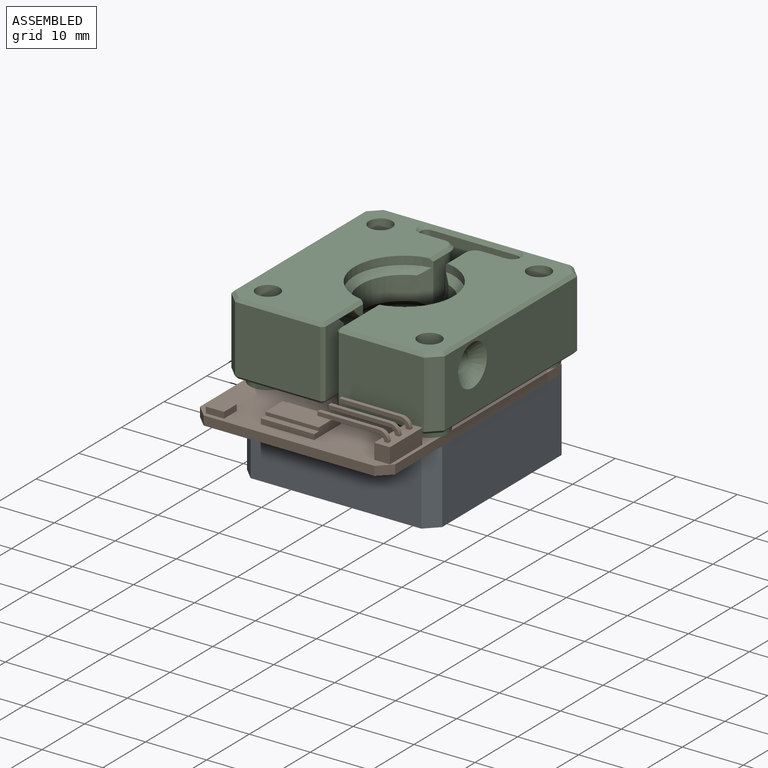
[diagram: assembled view]
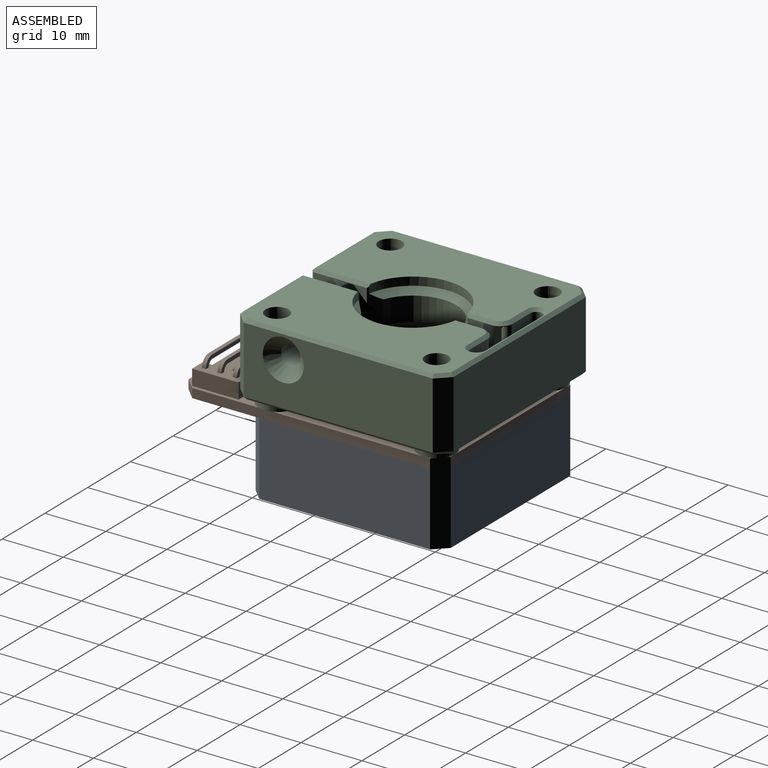
[diagram: assembled view, second angle]
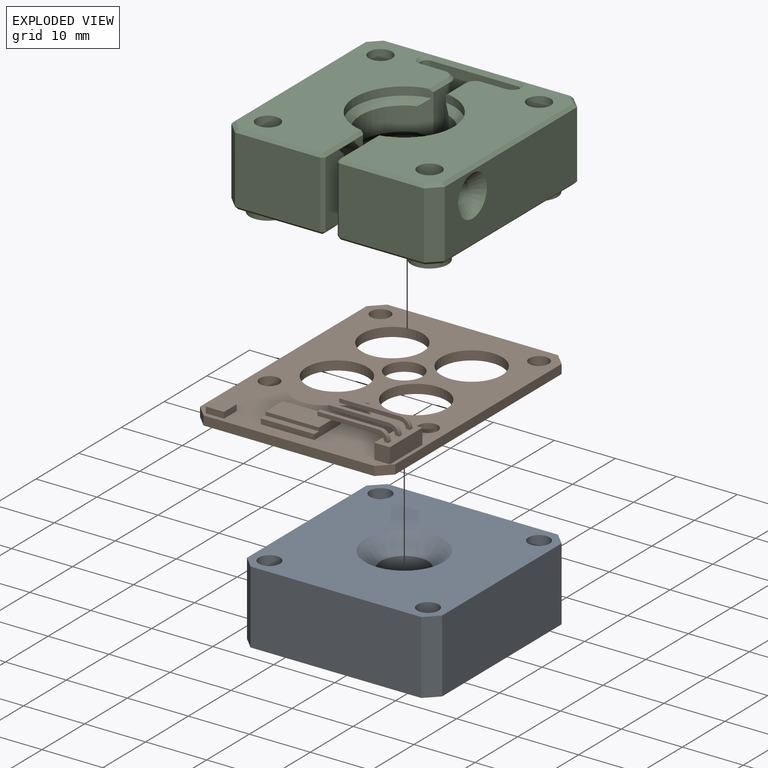
[diagram: exploded view]
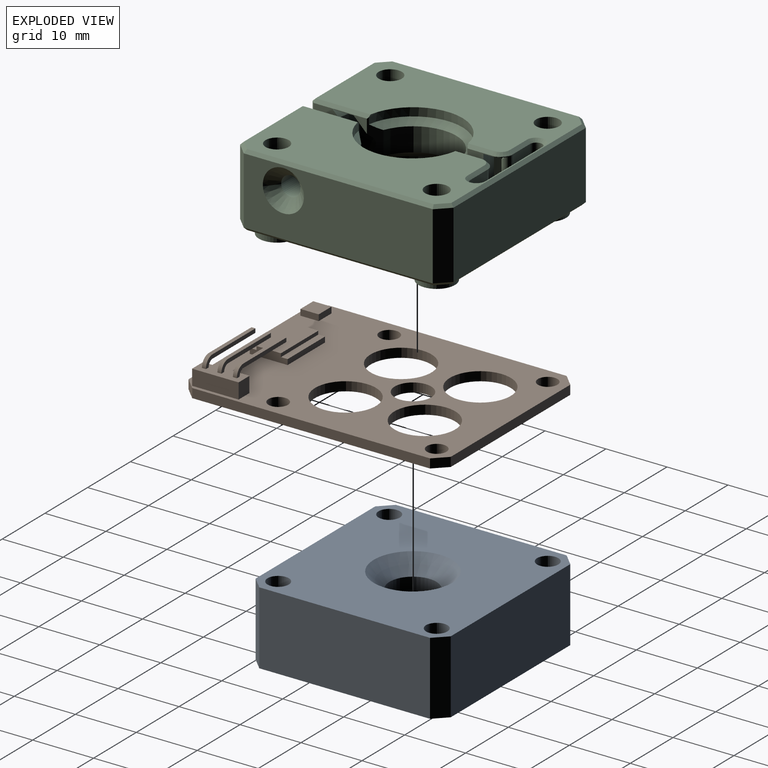
[diagram: exploded view, second angle]
ASSEMBLY  parts=3 mates=2
PART A: 16 faces, bbox 32x32x12 mm
  f0: plane 32x32mm, normal (0,0,1), area 930.9mm2, adj f2,f3,f4,f5,f6,f7,f8,f9
  f1: plane 32x32mm, normal (0,0,-1), area 847.7mm2, adj f2,f3,f4,f5,f6,f7,f8,f9
  f2: plane 28x12mm, normal (1,0,0), area 336mm2, adj f0,f1,f12,f14
  f3: plane 28x12mm, normal (0,1,0), area 336mm2, adj f0,f1,f12,f13
  f4: plane 28x12mm, normal (0,-1,0), area 336mm2, adj f0,f1,f14,f15
  f5: plane 28x12mm, normal (-1,0,0), area 336mm2, adj f0,f1,f13,f15
  f6: cylinder r=1.75mm len=12mm, axis (0,0,1), area 131.9mm2, adj f0,f1
  f7: cylinder r=1.75mm len=12mm, axis (0,0,1), area 131.9mm2, adj f0,f1
  f8: cylinder r=1.75mm len=12mm, axis (0,0,1), area 131.9mm2, adj f0,f1
  f9: cylinder r=1.75mm len=12mm, axis (0,0,1), area 131.9mm2, adj f0,f1
  f10: cylinder r=3.85mm len=9.42mm, axis (0,0,1), area 227.9mm2, adj f0,f11
  f11: cone r=3.46mm half-angle=45deg, axis (0,0,-1), area 117.8mm2, adj f1,f10
  f12: plane 12x2mm, normal (0.71,0.71,0), area 33.9mm2, adj f0,f1,f2,f3
  f13: plane 12x2mm, normal (-0.71,0.71,0), area 33.9mm2, adj f0,f1,f3,f5
  f14: plane 12x2mm, normal (0.71,-0.71,0), area 33.9mm2, adj f0,f1,f2,f4
  f15: plane 12x2mm, normal (-0.71,-0.71,0), area 33.9mm2, adj f0,f1,f4,f5
PART B: 59 faces, bbox 32x43x5.6 mm
  f0: plane 10x0.65mm, normal (0,0,1), area 6.5mm2, adj f2,f9,f10,f12
  f1: plane 10x0.65mm, normal (0,0,-1), area 6.5mm2, adj f2,f10,f11,f12
  f2: plane 0.65x0.65mm, normal (-1,0,0), area 0.4mm2, adj f0,f1,f10,f12
  f3: plane 10x0.65mm, normal (0,0,1), area 6.5mm2, adj f5,f13,f14,f16
  f4: plane 10x0.65mm, normal (0,0,-1), area 6.5mm2, adj f5,f14,f15,f16
  f5: plane 0.65x0.65mm, normal (-1,0,0), area 0.4mm2, adj f3,f4,f14,f16
  f6: plane 10x0.65mm, normal (0,0,1), area 6.5mm2, adj f8,f17,f18,f20
  f7: plane 10x0.65mm, normal (0,0,-1), area 6.5mm2, adj f8,f18,f19,f20
  f8: plane 0.65x0.65mm, normal (-1,0,0), area 0.4mm2, adj f6,f7,f18,f20
  f9: cylinder r=1.6mm len=1.61mm, axis (0,-1,0), area 1.6mm2, adj f0,f10,f12,f25
  f10: plane 11.61x1.61mm, normal (0,-1,0), area 7.8mm2, adj f0,f1,f2,f9,f11,f25
  f11: cylinder r=0.95mm len=0.96mm, axis (0,-1,0), area 1mm2, adj f1,f10,f12,f25
  f12: plane 11.61x1.61mm, normal (0,1,0), area 7.8mm2, adj f0,f1,f2,f9,f11,f25
  f13: cylinder r=1.6mm len=1.61mm, axis (0,-1,0), area 1.6mm2, adj f3,f14,f16,f25
  f14: plane 11.61x1.61mm, normal (0,-1,0), area 7.8mm2, adj f3,f4,f5,f13,f15,f25
  f15: cylinder r=0.95mm len=0.96mm, axis (0,-1,0), area 1mm2, adj f4,f14,f16,f25
  f16: plane 11.61x1.61mm, normal (0,1,0), area 7.8mm2, adj f3,f4,f5,f13,f15,f25
  f17: cylinder r=1.6mm len=1.61mm, axis (0,-1,0), area 1.6mm2, adj f6,f18,f20,f25
  f18: plane 11.61x1.61mm, normal (0,-1,0), area 7.8mm2, adj f6,f7,f8,f17,f19,f25
  f19: cylinder r=0.95mm len=0.96mm, axis (0,-1,0), area 1mm2, adj f7,f18,f20,f25
  f20: plane 11.61x1.61mm, normal (0,1,0), area 7.8mm2, adj f6,f7,f8,f17,f19,f25
  f21: plane 7.62x2.54mm, normal (1,0,0), area 19.4mm2, adj f22,f24,f25,f58
  f22: plane 2.54x2.54mm, normal (0,-1,0), area 6.5mm2, adj f21,f23,f25,f58
  f23: plane 7.62x2.54mm, normal (-1,0,0), area 19.4mm2, adj f22,f24,f25,f58
  f24: plane 2.54x2.54mm, normal (0,1,0), area 6.5mm2, adj f21,f23,f25,f58
  f25: plane 7.62x2.54mm, normal (0,0,1), area 18.1mm2, adj f9,f10,f11,f12,f13,f14,f15,f16
  f26: cylinder r=5mm len=10mm, axis (0,0,1), area 47.1mm2, adj f46,f58
  f27: cylinder r=5mm len=10mm, axis (0,0,1), area 47.1mm2, adj f46,f58
  f28: cylinder r=5mm len=10mm, axis (0,0,1), area 47.1mm2, adj f46,f58
  f29: cylinder r=5mm len=10mm, axis (0,0,1), area 47.1mm2, adj f46,f58
  f30: plane 3x1mm, normal (-1,0,0), area 3mm2, adj f31,f33,f34,f58
  f31: plane 3x1mm, normal (0,1,0), area 3mm2, adj f30,f32,f34,f58
  f32: plane 3x1mm, normal (1,0,0), area 3mm2, adj f31,f33,f34,f58
  f33: plane 3x1mm, normal (0,-1,0), area 3mm2, adj f30,f32,f34,f58
  f34: plane 3x3mm, normal (0,0,1), area 9mm2, adj f30,f31,f32,f33
  f35: plane 8.75x0.88mm, normal (0,-1,0), area 7.7mm2, adj f36,f40,f42,f58
  f36: plane 8.75x1.1mm, normal (0,0,1), area 9.6mm2, adj f35,f39,f40,f42
  f37: plane 8.75x0.88mm, normal (0,1,0), area 7.7mm2, adj f38,f40,f42,f58
  f38: plane 8.75x1.1mm, normal (0,0,1), area 9.6mm2, adj f37,f40,f41,f42
  f39: plane 8.75x0.58mm, normal (0,-1,0), area 5mm2, adj f36,f40,f42,f43
  f40: plane 6.2x1.45mm, normal (-1,0,0), area 7.7mm2, adj f35,f36,f37,f38,f39,f41,f43,f58
  f41: plane 8.75x0.58mm, normal (0,1,0), area 5mm2, adj f38,f40,f42,f43
  f42: plane 6.2x1.45mm, normal (1,0,0), area 7.7mm2, adj f35,f36,f37,f38,f39,f41,f43,f58
  f43: plane 8.75x4mm, normal (0,0,1), area 35mm2, adj f39,f40,f41,f42
  f44: cylinder r=3mm len=6mm, axis (0,0,1), area 28.3mm2, adj f46,f58
  f45: plane 2x2mm, normal (0.71,-0.71,0), area 4.2mm2, adj f46,f47,f56,f58
  f46: plane 43x32mm, normal (0,0,-1), area 993.4mm2, adj f26,f27,f28,f29,f44,f45,f47,f48
  f47: plane 28x1.5mm, normal (0,-1,0), area 42mm2, adj f45,f46,f48,f58
  f48: plane 2x2mm, normal (-0.71,-0.71,0), area 4.2mm2, adj f46,f47,f57,f58
  f49: plane 2x2mm, normal (0.71,0.71,0), area 4.2mm2, adj f46,f50,f56,f58
  f50: plane 28x1.5mm, normal (0,1,0), area 42mm2, adj f46,f49,f51,f58
  f51: plane 2x2mm, normal (-0.71,0.71,0), area 4.2mm2, adj f46,f50,f57,f58
  f52: cylinder r=1.6mm len=3.2mm, axis (0,0,1), area 15.1mm2, adj f46,f58
  f53: cylinder r=1.6mm len=3.2mm, axis (0,0,1), area 15.1mm2, adj f46,f58
  f54: cylinder r=1.6mm len=3.2mm, axis (0,0,1), area 15.1mm2, adj f46,f58
  f55: cylinder r=1.6mm len=3.2mm, axis (0,0,1), area 15.1mm2, adj f46,f58
  f56: plane 39x1.5mm, normal (1,0,0), area 58.5mm2, adj f45,f46,f49,f58
  f57: plane 39x1.5mm, normal (-1,0,0), area 58.5mm2, adj f46,f48,f51,f58
  f58: plane 43x32mm, normal (0,0,1), area 910.8mm2, adj f21,f22,f23,f24,f26,f27,f28,f29
PART C: 145 faces, bbox 35.2x35.2x13.9 mm
  f0: plane 16.51x7.15mm, normal (0,0,1), area 79.9mm2, adj f14,f69,f70,f72,f127,f129
  f1: plane 16.51x7.15mm, normal (0,0,1), area 79.9mm2, adj f16,f53,f67,f68,f128,f139
  f2: cylinder r=8.15mm len=16.12mm, axis (0,0,1), area 31.5mm2, adj f3,f4,f16,f68,f75,f126
  f3: plane 8.99x0.5mm, normal (-0.71,0,0.71), area 6.3mm2, adj f2,f16,f67,f107,f126
  f4: plane 4.29x0.5mm, normal (-0.71,0,0.71), area 3mm2, adj f2,f53,f68,f82,f126
  f5: cylinder r=8.15mm len=16.12mm, axis (0,0,1), area 31.5mm2, adj f6,f69,f70,f71,f126,f134
  f6: plane 4.29x0.5mm, normal (0.71,0,0.71), area 3mm2, adj f5,f69,f72,f76,f126
  f7: cylinder r=1.6mm len=7.98mm, axis (1,0,0), area 67.9mm2, adj f49,f66
  f8: plane 6.54x2.99mm, normal (0,-0.71,0.71), area 17.9mm2, adj f9,f10,f14,f70
  f9: cylinder r=1.6mm len=6.62mm, axis (1,0,0), area 15.4mm2, adj f8,f10,f13,f70
  f10: cylinder r=10.9mm len=21.71mm, axis (0,0,1), area 291mm2, adj f8,f9,f13,f14,f34,f37,f72
  f11: plane 6.54x2.99mm, normal (0,-0.71,0.71), area 17.9mm2, adj f15,f16,f54,f67
  f12: plane 6.54x2.57mm, normal (0,-0.71,-0.71), area 17.1mm2, adj f15,f16,f42,f54,f67
  f13: plane 6.54x2.57mm, normal (0,-0.71,-0.71), area 17.1mm2, adj f9,f10,f14,f37,f70
  f14: plane 14.18x13.2mm, normal (1,0,0), area 72.5mm2, adj f0,f8,f10,f13,f34,f35,f36,f37
  f15: cylinder r=10.9mm len=21.71mm, axis (0,0,1), area 291mm2, adj f11,f12,f42,f48,f53,f54,f67
  f16: plane 11.4x1.8mm, normal (-0.71,0.71,0), area 10.1mm2, adj f1,f2,f3,f11,f12,f54,f67,f73
  f17: cone r=14.1mm half-angle=45deg, axis (0,0,-1), area 22.8mm2, adj f18,f19,f23,f44,f51
  f18: plane 4.01x0.51mm, normal (0,0.71,-0.71), area 2.8mm2, adj f17,f19,f23,f83,f89
  f19: cone r=1.75mm half-angle=45deg, axis (0,0,1), area 0.7mm2, adj f17,f18,f40,f44,f88
  f20: cone r=14.1mm half-angle=45deg, axis (0,0,-1), area 22.8mm2, adj f21,f22,f23,f45,f115
  f21: cone r=1.75mm half-angle=45deg, axis (0,0,1), area 0.7mm2, adj f20,f22,f39,f45,f92
  f22: plane 4.01x0.51mm, normal (0,0.71,-0.71), area 2.8mm2, adj f20,f21,f23,f87,f91
  f23: plane 34x34mm, normal (0,0,-1), area 339.9mm2, adj f17,f18,f20,f22,f51,f55,f57,f59
  f24: cone r=0.95mm half-angle=59deg, axis (0,0,1), area 5.5mm2, adj f25,f142
  f25: cylinder r=1.9mm len=6mm, axis (0,0,1), area 71.6mm2, adj f24,f126
  f26: cone r=0.95mm half-angle=59deg, axis (0,0,1), area 5.5mm2, adj f27,f140
  f27: cylinder r=1.9mm len=6mm, axis (0,0,1), area 71.6mm2, adj f26,f126
  f28: cone r=0.95mm half-angle=59deg, axis (0,0,1), area 5.5mm2, adj f29,f141
  f29: cylinder r=1.9mm len=6mm, axis (0,0,1), area 71.6mm2, adj f28,f126
  f30: cone r=0.95mm half-angle=59deg, axis (0,0,1), area 5.5mm2, adj f31,f143
  f31: cylinder r=1.9mm len=6mm, axis (0,0,1), area 71.6mm2, adj f30,f126
  f32: cylinder r=0.87mm len=10.4mm, axis (0,0,1), area 24.8mm2, adj f34,f35,f36,f37,f47,f87
  f33: cylinder r=0.87mm len=10.4mm, axis (0,0,1), area 24.8mm2, adj f42,f43,f46,f48,f49,f83
  f34: plane 28.16x12.9mm, normal (0,0,1), area 110.7mm2, adj f10,f14,f32,f35,f39,f72
  f35: cone r=13.4mm half-angle=45deg, axis (0,0,-1), area 54.9mm2, adj f14,f32,f34,f36
  f36: cylinder r=12.9mm len=25.45mm, axis (0,0,1), area 298mm2, adj f14,f32,f35,f47,f65
  f37: plane 28.16x12.9mm, normal (0,0,-1), area 111.2mm2, adj f10,f13,f14,f32,f38,f47,f72
  f38: cylinder r=2mm len=2mm, axis (0,0,-1), area 0.3mm2, adj f37,f72,f76,f87
  f39: cylinder r=2mm len=2mm, axis (0,0,-1), area 1.6mm2, adj f21,f34,f72,f87
  f40: cylinder r=2mm len=2mm, axis (0,0,1), area 1.6mm2, adj f19,f48,f53,f83
  f41: cylinder r=2mm len=2mm, axis (0,0,1), area 0.3mm2, adj f42,f53,f82,f83
  f42: plane 28.16x12.9mm, normal (0,0,-1), area 111.2mm2, adj f12,f15,f33,f41,f43,f53,f67
  f43: cone r=13.4mm half-angle=45deg, axis (0,0,1), area 54.9mm2, adj f33,f42,f49,f67
  f44: plane 27.64x12.8mm, normal (0,0,-1), area 96.8mm2, adj f17,f19,f51,f52,f88
  f45: plane 27.64x12.8mm, normal (0,0,-1), area 96.8mm2, adj f20,f21,f50,f92,f115
  f46: cone r=13.4mm half-angle=45deg, axis (0,0,-1), area 54.9mm2, adj f33,f48,f49,f67
  f47: cone r=13.4mm half-angle=45deg, axis (0,0,1), area 54.9mm2, adj f14,f32,f36,f37
  f48: plane 28.16x12.9mm, normal (0,0,1), area 110.7mm2, adj f15,f33,f40,f46,f53,f67
  f49: cylinder r=12.9mm len=25.45mm, axis (0,0,1), area 298mm2, adj f7,f33,f43,f46,f67
  f50: cone r=10.4mm half-angle=45deg, axis (0,0,1), area 62mm2, adj f14,f45,f72,f92,f115,f135
  f51: plane 5.76x0.5mm, normal (-0.71,0,-0.71), area 2.5mm2, adj f17,f23,f44,f52,f67,f104
  f52: cone r=10.4mm half-angle=45deg, axis (0,0,1), area 62mm2, adj f44,f51,f53,f67,f88,f136
  f53: plane 13.2x9.48mm, normal (-1,0,0), area 42.2mm2, adj f1,f4,f15,f40,f41,f42,f48,f52
  f54: cylinder r=1.6mm len=6.62mm, axis (1,0,0), area 15.4mm2, adj f11,f12,f15,f16
  f55: cylinder r=3mm len=6mm, axis (0,0,-1), area 24.5mm2, adj f23,f56
  f56: plane 6x6mm, normal (0,0,-1), area 21.7mm2, adj f55,f141
  f57: cylinder r=3mm len=6mm, axis (0,0,-1), area 24.5mm2, adj f23,f58
  f58: plane 6x6mm, normal (0,0,-1), area 21.7mm2, adj f57,f143
  f59: cylinder r=3mm len=6mm, axis (0,0,-1), area 24.5mm2, adj f23,f60
  f60: plane 6x6mm, normal (0,0,-1), area 21.7mm2, adj f59,f140
  f61: cylinder r=3mm len=6mm, axis (0,0,-1), area 24.5mm2, adj f23,f62
  f62: plane 6x6mm, normal (0,0,-1), area 21.7mm2, adj f61,f142
  f63: cylinder r=1.9mm len=4mm, axis (1,0,0), area 47.8mm2, adj f64,f123
  f64: plane 3.8x3.8mm, normal (-1,0,0), area 3.3mm2, adj f63,f65
  f65: cylinder r=1.6mm len=5.75mm, axis (1,0,0), area 45.5mm2, adj f36,f64
  f66: cone r=2.49mm half-angle=45deg, axis (1,0,0), area 39.2mm2, adj f7,f119
  f67: plane 14.18x13.2mm, normal (-1,0,0), area 72.5mm2, adj f1,f3,f11,f12,f15,f16,f42,f43
  f68: plane 11.4x1.8mm, normal (-0.71,-0.71,0), area 12.6mm2, adj f1,f2,f4,f53,f73,f74,f75,f128
  f69: plane 11.4x1.8mm, normal (0.71,-0.71,0), area 12.6mm2, adj f0,f5,f6,f72,f127,f130,f132,f134
  f70: plane 11.4x1.8mm, normal (0.71,0.71,0), area 10.1mm2, adj f0,f5,f8,f9,f13,f14,f71,f127
  f71: plane 8.99x0.5mm, normal (0.71,0,0.71), area 6.3mm2, adj f5,f14,f70,f96,f126
  f72: plane 13.2x9.48mm, normal (1,0,0), area 42.2mm2, adj f0,f6,f10,f34,f37,f38,f39,f50
  f73: cone r=7.61mm half-angle=45deg, axis (0,0,-1), area 28.4mm2, adj f16,f68,f74,f128
  f74: cylinder r=7.15mm len=13.33mm, axis (0,0,1), area 66.5mm2, adj f16,f68,f73,f75
  f75: cone r=7.61mm half-angle=45deg, axis (0,0,1), area 28.4mm2, adj f2,f16,f68,f74
  f76: cone r=1.75mm half-angle=45deg, axis (0,0,-1), area 1.9mm2, adj f6,f38,f77,f126
  f77: plane 4x0.5mm, normal (0,0.71,0.71), area 2.8mm2, adj f76,f78,f87,f126
  f78: cone r=1.25mm half-angle=45deg, axis (0,0,1), area 2.8mm2, adj f77,f79,f86,f126
  f79: plane 14x0.5mm, normal (0,-0.71,0.71), area 9.9mm2, adj f78,f80,f85,f126
  f80: cone r=1.25mm half-angle=45deg, axis (0,0,1), area 2.8mm2, adj f79,f81,f84,f126
  f81: plane 4x0.5mm, normal (0,0.71,0.71), area 2.8mm2, adj f80,f82,f83,f126
  f82: cone r=1.75mm half-angle=45deg, axis (0,0,-1), area 1.9mm2, adj f4,f41,f81,f126
  f83: plane 11x4mm, normal (0,1,0), area 44mm2, adj f18,f33,f40,f41,f81,f84
  f84: cylinder r=1mm len=11mm, axis (0,0,-1), area 34.6mm2, adj f80,f83,f85,f89
  f85: plane 14x11mm, normal (0,-1,0), area 154mm2, adj f79,f84,f86,f90
  f86: cylinder r=1mm len=11mm, axis (0,0,-1), area 34.6mm2, adj f78,f85,f87,f91
  f87: plane 11x4mm, normal (0,1,0), area 44mm2, adj f22,f32,f38,f39,f77,f86
  f88: plane 1.05x0.1mm, normal (-0.71,0,-0.71), area 0.1mm2, adj f19,f44,f52,f53
  f89: cone r=1.25mm half-angle=45deg, axis (0,0,-1), area 2.8mm2, adj f18,f23,f84,f90
  f90: plane 14x0.5mm, normal (0,-0.71,-0.71), area 9.9mm2, adj f23,f85,f89,f91
  f91: cone r=1.25mm half-angle=45deg, axis (0,0,-1), area 2.8mm2, adj f22,f23,f86,f90
  f92: plane 1.05x0.1mm, normal (0.71,0,-0.71), area 0.1mm2, adj f21,f45,f50,f72
  f93: plane 31x0.5mm, normal (-0.71,0,-0.71), area 21.8mm2, adj f23,f116,f117,f123
  f94: plane 0.5x0.5mm, normal (0.58,-0.58,-0.58), area 0.2mm2, adj f97,f114,f115
  f95: plane 31x0.5mm, normal (0,0.71,-0.71), area 21.8mm2, adj f23,f98,f116,f121
  f96: plane 0.5x0.5mm, normal (0.58,-0.58,0.58), area 0.2mm2, adj f71,f97,f99
  f97: plane 11x0.5mm, normal (0.71,-0.71,0), area 7.8mm2, adj f14,f94,f96,f125
  f98: plane 2.21x2.21mm, normal (0.5,0.5,-0.71), area 1.9mm2, adj f23,f95,f100,f120
  f99: plane 14x0.5mm, normal (0,-0.71,0.71), area 9.8mm2, adj f96,f101,f125,f126
  f100: plane 31x0.5mm, normal (0.71,0,-0.71), area 21.8mm2, adj f23,f98,f102,f119
  f101: plane 2.21x2.21mm, normal (-0.5,-0.5,0.71), area 1.9mm2, adj f99,f103,f124,f126
  f102: plane 2.21x2.21mm, normal (0.5,-0.5,-0.71), area 1.9mm2, adj f23,f100,f105,f118
  f103: plane 31x0.5mm, normal (-0.71,0,0.71), area 21.8mm2, adj f101,f106,f123,f126
  f104: plane 0.5x0.5mm, normal (-0.58,-0.58,-0.58), area 0.2mm2, adj f51,f105,f113
  f105: plane 14x0.5mm, normal (0,-0.71,-0.71), area 9.8mm2, adj f23,f102,f104,f144
  f106: plane 2.21x2.21mm, normal (-0.5,0.5,0.71), area 1.9mm2, adj f103,f108,f122,f126
  f107: plane 0.5x0.5mm, normal (-0.58,-0.58,0.58), area 0.2mm2, adj f3,f112,f113
  f108: plane 31x0.5mm, normal (0,0.71,0.71), area 21.8mm2, adj f106,f109,f121,f126
  f109: plane 2.21x2.21mm, normal (0.5,0.5,0.71), area 1.9mm2, adj f108,f110,f120,f126
  f110: plane 31x0.5mm, normal (0.71,0,0.71), area 21.8mm2, adj f109,f111,f119,f126
  f111: plane 2.21x2.21mm, normal (0.5,-0.5,0.71), area 1.9mm2, adj f110,f112,f118,f126
  f112: plane 14x0.5mm, normal (0,-0.71,0.71), area 9.8mm2, adj f107,f111,f126,f144
  f113: plane 11x0.5mm, normal (-0.71,-0.71,0), area 7.8mm2, adj f67,f104,f107,f144
  f114: plane 14x0.5mm, normal (0,-0.71,-0.71), area 9.8mm2, adj f23,f94,f117,f125
  f115: plane 5.76x0.5mm, normal (0.71,0,-0.71), area 2.5mm2, adj f14,f20,f23,f45,f50,f94
  f116: plane 2.21x2.21mm, normal (-0.5,0.5,-0.71), area 1.9mm2, adj f23,f93,f95,f122
  f117: plane 2.21x2.21mm, normal (-0.5,-0.5,-0.71), area 1.9mm2, adj f23,f93,f114,f124
  f118: plane 11x2mm, normal (0.71,-0.71,0), area 31.1mm2, adj f102,f111,f119,f144
  f119: plane 31x11mm, normal (1,0,0), area 305.2mm2, adj f66,f100,f110,f118,f120
  f120: plane 11x2mm, normal (0.71,0.71,0), area 31.1mm2, adj f98,f109,f119,f121
  f121: plane 31x11mm, normal (0,1,0), area 341mm2, adj f95,f108,f120,f122
  f122: plane 11x2mm, normal (-0.71,0.71,0), area 31.1mm2, adj f106,f116,f121,f123
  f123: plane 31x11mm, normal (-1,0,0), area 329.7mm2, adj f63,f93,f103,f122,f124
  f124: plane 11x2mm, normal (-0.71,-0.71,0), area 31.1mm2, adj f101,f117,f123,f125
  f125: plane 14x11mm, normal (0,-1,0), area 154mm2, adj f97,f99,f114,f124
  f126: plane 34x34mm, normal (0,0,1), area 802.3mm2, adj f2,f3,f4,f5,f6,f25,f27,f29
  f127: cylinder r=8.15mm len=16.12mm, axis (0,0,1), area 98.9mm2, adj f0,f69,f70,f130
  f128: cylinder r=8.15mm len=16.12mm, axis (0,0,1), area 98.9mm2, adj f1,f16,f68,f73
  f129: cylinder r=3mm len=5.66mm, axis (0,0,-1), area 16.2mm2, adj f0,f14,f72,f131
  f130: cone r=7.61mm half-angle=45deg, axis (0,0,-1), area 28.4mm2, adj f69,f70,f127,f132
  f131: plane 8.78x3.5mm, normal (0,0,-1), area 14.6mm2, adj f14,f72,f129,f133
  f132: cylinder r=7.15mm len=13.33mm, axis (0,0,1), area 66.5mm2, adj f69,f70,f130,f134
  f133: cylinder r=4.5mm len=8.78mm, axis (0,0,-1), area 8.5mm2, adj f14,f72,f131,f135
  f134: cone r=7.61mm half-angle=45deg, axis (0,0,1), area 28.4mm2, adj f5,f69,f70,f132
  f135: plane 19.7x8.9mm, normal (0,0,-1), area 111.3mm2, adj f14,f50,f72,f133
  f136: plane 19.7x8.9mm, normal (0,0,-1), area 111.3mm2, adj f52,f53,f67,f137
  f137: cylinder r=4.5mm len=8.78mm, axis (0,0,-1), area 8.5mm2, adj f53,f67,f136,f138
  f138: plane 8.78x3.5mm, normal (0,0,-1), area 14.6mm2, adj f53,f67,f137,f139
  f139: cylinder r=3mm len=5.66mm, axis (0,0,-1), area 16.2mm2, adj f1,f53,f67,f138
  f140: cylinder r=1.45mm len=7.03mm, axis (0,0,1), area 64mm2, adj f26,f60
  f141: cylinder r=1.45mm len=7.03mm, axis (0,0,1), area 64mm2, adj f28,f56
  f142: cylinder r=1.45mm len=7.03mm, axis (0,0,1), area 64mm2, adj f24,f62
  f143: cylinder r=1.45mm len=7.03mm, axis (0,0,1), area 64mm2, adj f30,f58
  f144: plane 14x11mm, normal (0,-1,0), area 154mm2, adj f105,f112,f113,f118
PLACE A rot(axis=(0,1,0),180deg) t=(-10.5,17.01,26.82)mm
PLACE B t=(-10.5,17.01,31.82)mm
PLACE C t=(-10.5,17.01,34.62)mm
MATE fastened B.f53 <-> C.f24  axis (0,0,1) through (-23.5,30.01,33.32)mm
MATE fastened A.f7 <-> B.f53  axis (0,0,1) through (-23.5,30.01,31.82)mm
